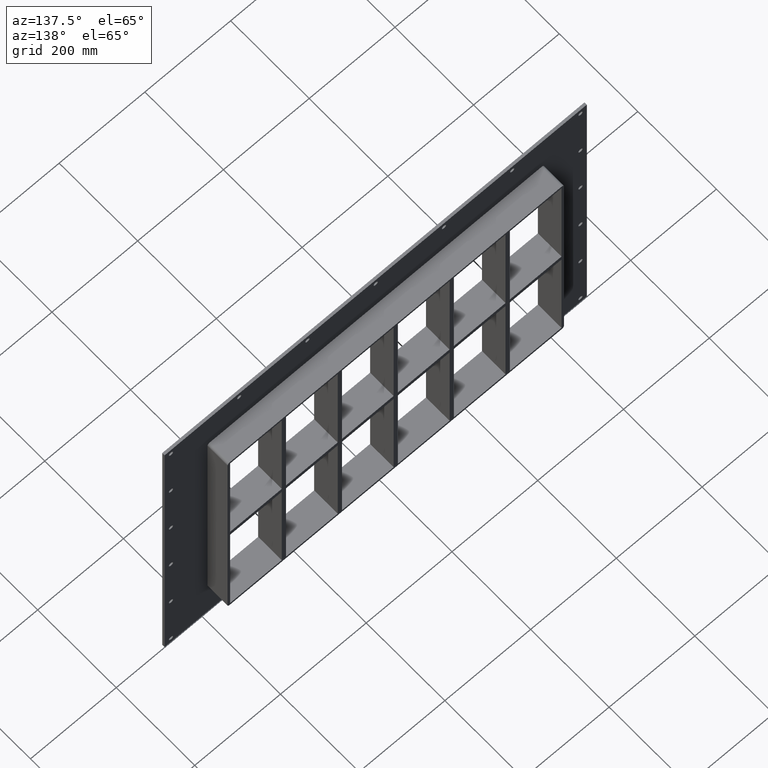
[diagram: clean part render]
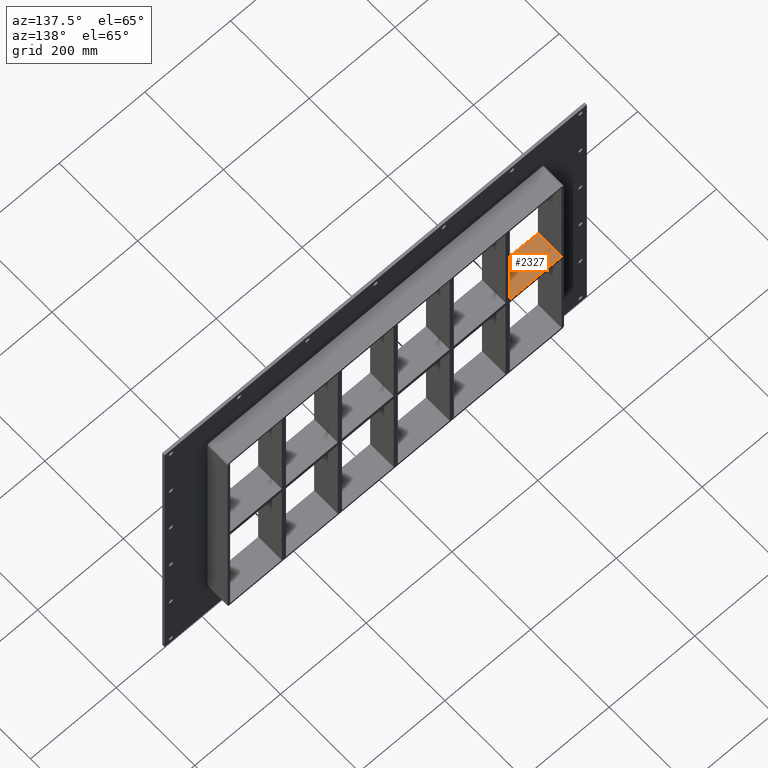
[diagram: same view with one face highlighted and labeled with its STEP entity id]
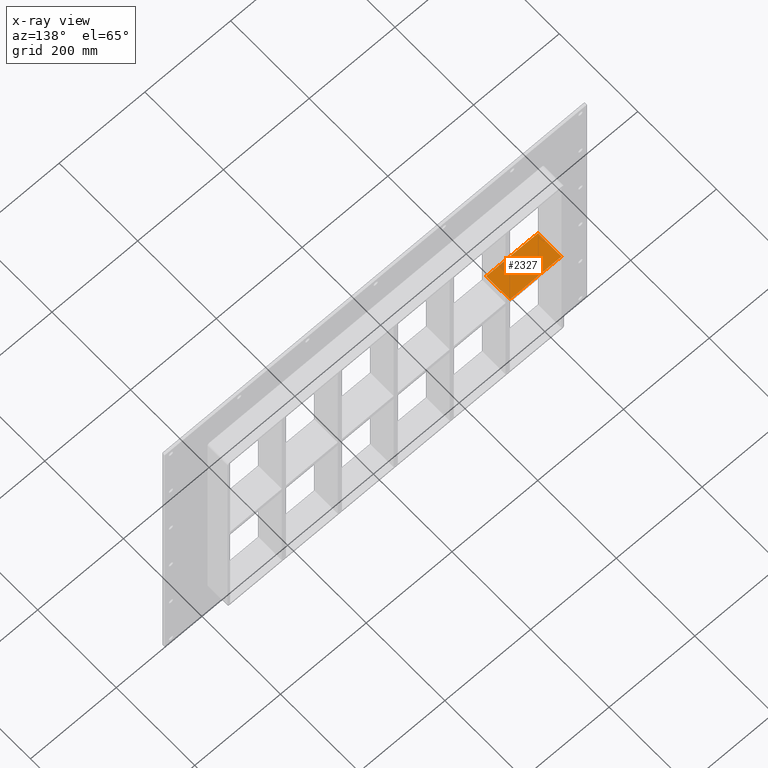
[diagram: x-ray of the same camera — body ghosted, the highlighted face saturated]
A machine part, auxiliary view. The second image highlights one B-rep face of the part: STEP entity #2327.
The next image is the same camera in x-ray: the body ghosted, the highlighted face saturated — about 5% of this face is hidden behind the body in this view.
In plain terms, the highlighted planar face has unit normal (0, 0, 1).
Its self-contained STEP definition (entity closure, byte-faithful):
#1694=CARTESIAN_POINT('',(-386.49999999999977,-3.0,5.999999999999943));
#1695=VERTEX_POINT('',#1694);
#1712=CARTESIAN_POINT('',(-266.00000000000142,-3.0,5.999999999999943));
#1713=VERTEX_POINT('',#1712);
#1720=CARTESIAN_POINT('',(-386.49999999999977,-3.0,5.999999999999943));
#1721=DIRECTION('',(1.0,0.0,0.0));
#1722=VECTOR('',#1721,120.49999999999841);
#1723=LINE('',#1720,#1722);
#1724=EDGE_CURVE('',#1695,#1713,#1723,.T.);
#2038=CARTESIAN_POINT('',(-386.49999999999977,57.0,5.999999999999943));
#2039=VERTEX_POINT('',#2038);
#2040=CARTESIAN_POINT('',(-266.00000000000142,57.0,5.999999999999943));
#2041=VERTEX_POINT('',#2040);
#2042=CARTESIAN_POINT('',(-386.49999999999977,57.0,5.999999999999943));
#2043=DIRECTION('',(1.0,0.0,0.0));
#2044=VECTOR('',#2043,120.49999999999841);
#2045=LINE('',#2042,#2044);
#2046=EDGE_CURVE('',#2039,#2041,#2045,.T.);
#2306=CARTESIAN_POINT('',(-386.49999999999977,-3.0,5.999999999999943));
#2307=DIRECTION('',(0.0,0.0,1.0));
#2308=DIRECTION('',(1.0,0.0,0.0));
#2309=AXIS2_PLACEMENT_3D('',#2306,#2307,#2308);
#2310=PLANE('',#2309);
#2311=CARTESIAN_POINT('',(-266.00000000000142,57.0,5.999999999999943));
#2312=DIRECTION('',(0.0,-1.0,0.0));
#2313=VECTOR('',#2312,60.0);
#2314=LINE('',#2311,#2313);
#2315=EDGE_CURVE('',#2041,#1713,#2314,.T.);
#2316=ORIENTED_EDGE('',*,*,#2315,.F.);
#2317=ORIENTED_EDGE('',*,*,#2046,.F.);
#2318=CARTESIAN_POINT('',(-386.50000000000006,-3.0,5.999999999999943));
#2319=DIRECTION('',(0.0,1.0,0.0));
#2320=VECTOR('',#2319,60.000000000000007);
#2321=LINE('',#2318,#2320);
#2322=EDGE_CURVE('',#1695,#2039,#2321,.T.);
#2323=ORIENTED_EDGE('',*,*,#2322,.F.);
#2324=ORIENTED_EDGE('',*,*,#1724,.T.);
#2325=EDGE_LOOP('',(#2316,#2317,#2323,#2324));
#2326=FACE_OUTER_BOUND('',#2325,.T.);
#2327=ADVANCED_FACE('',(#2326),#2310,.T.);